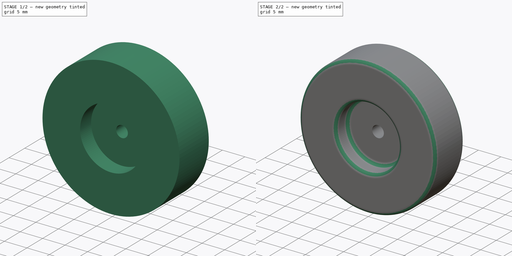
[diagram: build sequence overview — one tinted view per stage of 2, left to right]
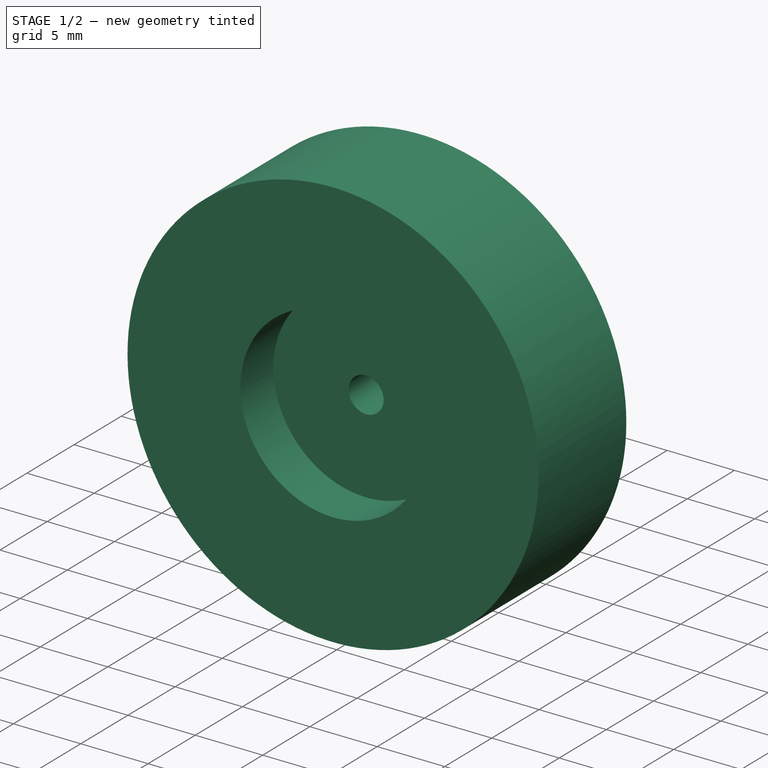
[diagram: stage 1 of 2 — iso view after this stage's code; geometry added in this stage tinted green]
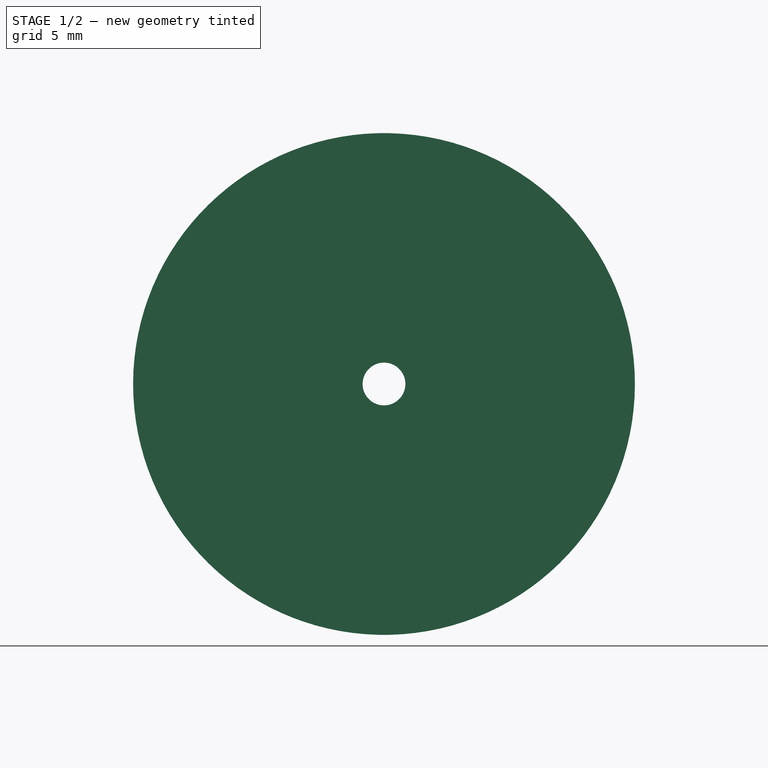
[diagram: stage 1 of 2 — front view after this stage's code; geometry added in this stage tinted green]
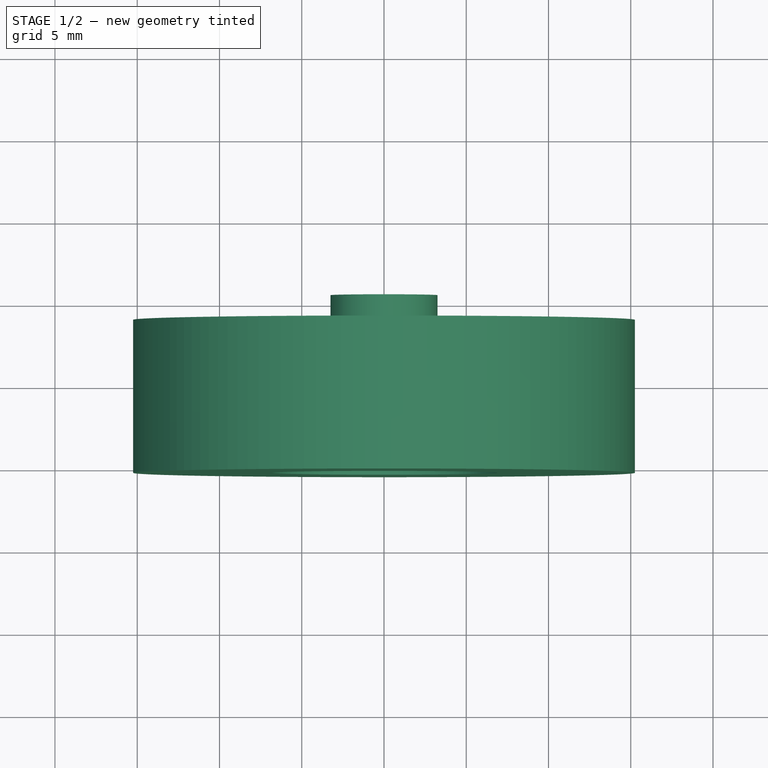
[diagram: stage 1 of 2 — top view after this stage's code; geometry added in this stage tinted green]
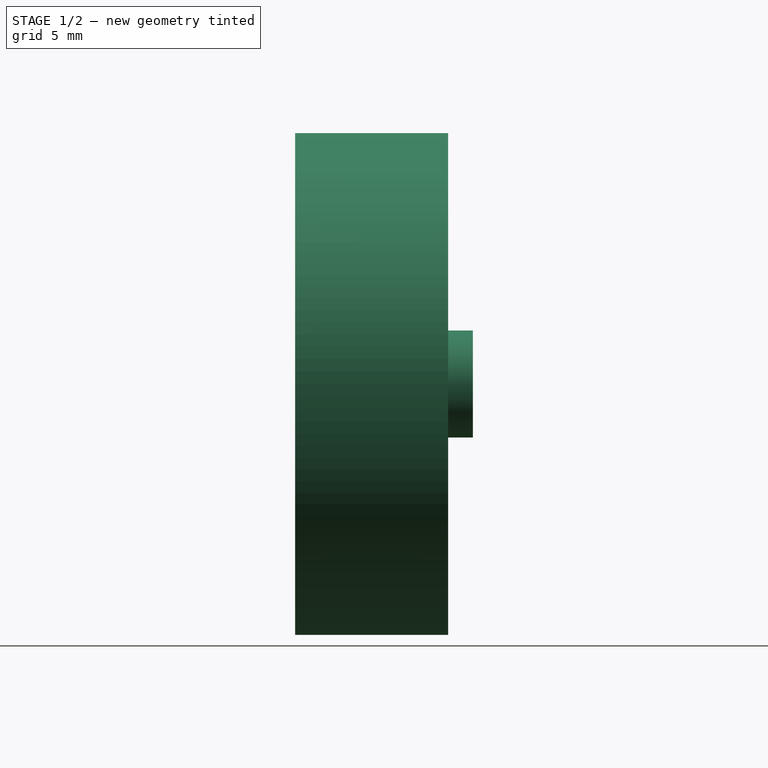
[diagram: stage 1 of 2 — right view after this stage's code; geometry added in this stage tinted green]
FCSTD DOCUMENT  (FreeCAD 1.0R39285 (Git))
Label: StandardWheel
License: All rights reserved
LicenseURL: https://en.wikipedia.org/wiki/All_rights_reserved
objects: Sketcher::SketchObject×2, PartDesign::Fillet×2, App::Link×1, PartDesign::Revolution×1, PartDesign::Pocket×1, PartDesign::Body×1
note: 17 computed .brp shape members not serialized (recipe doc carries the construction recipe); baked Part::Feature solids carry a one-line shape summary decoded from their .brp
EXTERNAL_REF file=../../Dimentions.FCStd obj=dd002

FEATURE [App::Link] Link  label="Wheel"
  AxelHoleDiameter = 2.6
  LinkedObject = -> <external ../../Dimentions.FCStd>#dd002
FEATURE [Sketcher::SketchObject] Sketch
  ArcFitTolerance = 1e-06
  AttachmentSupport = -> [XY_Plane]
  FullyConstrained = true
  MakeInternals = false
  MapMode = 5
  expr: Constraints[33] = <<Wheel>>.SingleThickness
  expr: Constraints[34] = <<Wheel>>.Diameter
  expr: Constraints[35] = <<Wheel>>.StemDiameter
  expr: Constraints[36] = <<Wheel>>.StemPoke
  expr: Constraints[37] = <<Wheel>>.AxelHoleDiameter
  expr: Constraints[38] = <<Wheel>>.LipThickness
  sketch-geometry (15):
    g0: LineSegment [constr] StartX=-1.3 StartY=5.4 StartZ=0 EndX=-1.3 EndY=-5.4 EndZ=0
    g1: LineSegment [constr] StartX=-1.3 StartY=-5.4 StartZ=0 EndX=-15.25 EndY=-5.4 EndZ=0
    g2: LineSegment [constr] StartX=-15.25 StartY=-5.4 StartZ=0 EndX=-15.25 EndY=3.9 EndZ=0
    g3: LineSegment [constr] StartX=-15.25 StartY=3.9 StartZ=0 EndX=-3.25 EndY=3.9 EndZ=0
    g4: LineSegment [constr] StartX=-3.25 StartY=3.9 StartZ=0 EndX=-3.25 EndY=5.4 EndZ=0
    g5: LineSegment [constr] StartX=-3.25 StartY=5.4 StartZ=0 EndX=-1.3 EndY=5.4 EndZ=0
    g6: LineSegment StartX=1.3 StartY=5.4 StartZ=0 EndX=1.3 EndY=-5.4 EndZ=0
    g7: LineSegment StartX=1.3 StartY=-5.4 StartZ=0 EndX=15.25 EndY=-5.4 EndZ=0
    g8: LineSegment StartX=15.25 StartY=-5.4 StartZ=0 EndX=15.25 EndY=3.9 EndZ=0
    g9: LineSegment StartX=15.25 StartY=3.9 StartZ=0 EndX=12.75 EndY=3.9 EndZ=0
    g10: LineSegment StartX=12.75 StartY=3.9 StartZ=0 EndX=12.75 EndY=-1.4 EndZ=0
    g11: LineSegment StartX=12.75 StartY=-1.4 StartZ=0 EndX=3.25 EndY=-1.4 EndZ=0
    g12: LineSegment StartX=3.25 StartY=-1.4 StartZ=0 EndX=3.25 EndY=5.4 EndZ=0
    g13: LineSegment StartX=3.25 StartY=5.4 StartZ=0 EndX=1.3 EndY=5.4 EndZ=0
    g14: LineSegment [constr] StartX=12.75 StartY=-1.4 StartZ=0 EndX=12.75 EndY=-5.4 EndZ=0
  constraints (43):
    c: Vertical(g0)
    c: Coincident(g0,g1)
    c: Horizontal(g1)
    c: Coincident(g1,g2)
    c: Vertical(g2)
    c: Coincident(g2,g3)
    c: Horizontal(g3)
    c: Coincident(g3,g4)
    c: Vertical(g4)
    c: Coincident(g4,g5)
    c: Coincident(g5,g0)
    c: Horizontal(g5)
    c: Coincident(g6,g7)
    c: Horizontal(g7)
    c: Coincident(g7,g8)
    c: Vertical(g8)
    c: Coincident(g8,g9)
    c: Horizontal(g9)
    c: Coincident(g9,g10)
    c: Vertical(g10)
    c: Coincident(g10,g11)
    c: Horizontal(g11)
    c: Coincident(g11,g12)
    c: Vertical(g12)
    c: Coincident(g12,g13)
    c: Coincident(g13,g6)
    c: Symmetric(g0,g6,g-2)
    c: Horizontal(g13)
    c: Equal(g13,g5)
    c: Symmetric(g6,g6,g-1)
    c: Equal(g0,g6)
    c: Equal(g2,g8)
    c: Equal(g1,g7)
    c: DistanceY(g6,g6) = 10.8
    c: DistanceX(g1,g7) = 30.5
    c: Distance(g4,g12) = 6.5
    c: DistanceY(g9,g12) = 1.5
    c: Distance(g0,g6) = 2.6
    c: DistanceX(g10,g7) = 2.5
    c: Coincident(g14,g10)
    c: PointOnObject(g14,g7)
    c: Vertical(g14)
    c: DistanceY(g14,g14) = 4
FEATURE [PartDesign::Revolution] Revolution
  Angle = 360
  Angle2 = 60
  Axis = (0,1,0)
  Base = (0,0,0)
  Profile = -> Sketch
  ReferenceAxis = -> Sketch [V_Axis]
  Refine = true
  Reversed = true
  Suppressed = false
  Type = 0
FEATURE [Sketcher::SketchObject] Sketch001
  ArcFitTolerance = 1e-06
  AttachmentSupport = -> [Revolution]
  FullyConstrained = true
  MakeInternals = false
  MapMode = 5
  Placement = pos=(0,-5.4,0) rot=(1,0,0;1.5708rad)
  expr: Constraints[1] = <<Wheel>>.HubDipDiameter
  sketch-geometry (1):
    g0: Circle CenterX=0 CenterY=0 CenterZ=0 NormalX=0 NormalY=0 NormalZ=1 AngleXU=0 Radius=6.875
  constraints (2):
    c: Coincident(g0,g-1)
    c: Diameter(g0) = 13.75
FEATURE [PartDesign::Pocket] Pocket
  BaseFeature = -> Revolution
  Direction = (0,1,-2e-16)
  Length = 3.5
  Length2 = 5
  Profile = -> Sketch001
  ReferenceAxis = -> Sketch001 [N_Axis]
  Refine = true
  Suppressed = false
  Type = 0
  expr: Length = <<Wheel>>.HubDip
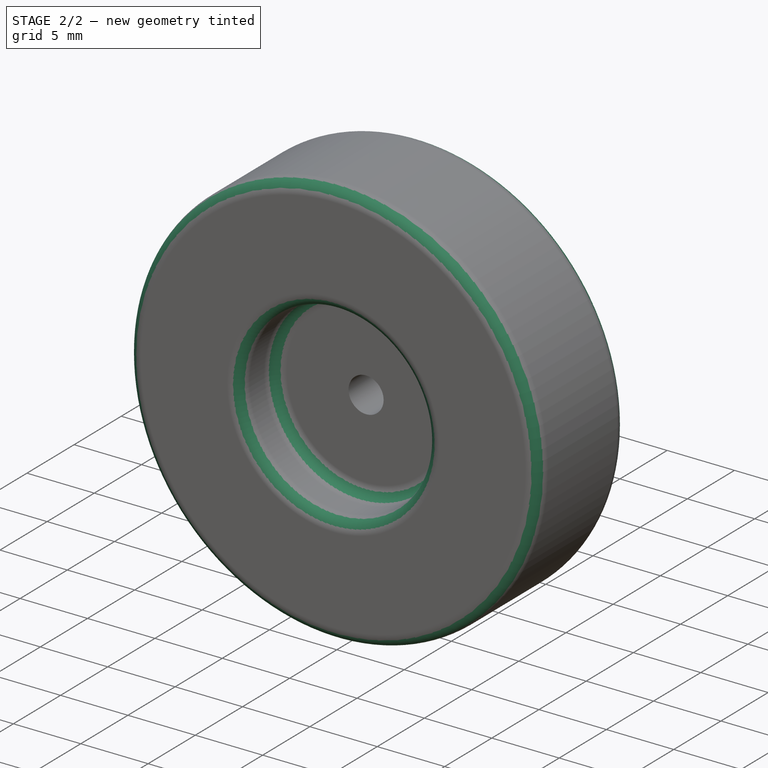
[diagram: stage 2 of 2 — iso view after this stage's code; geometry added in this stage tinted green]
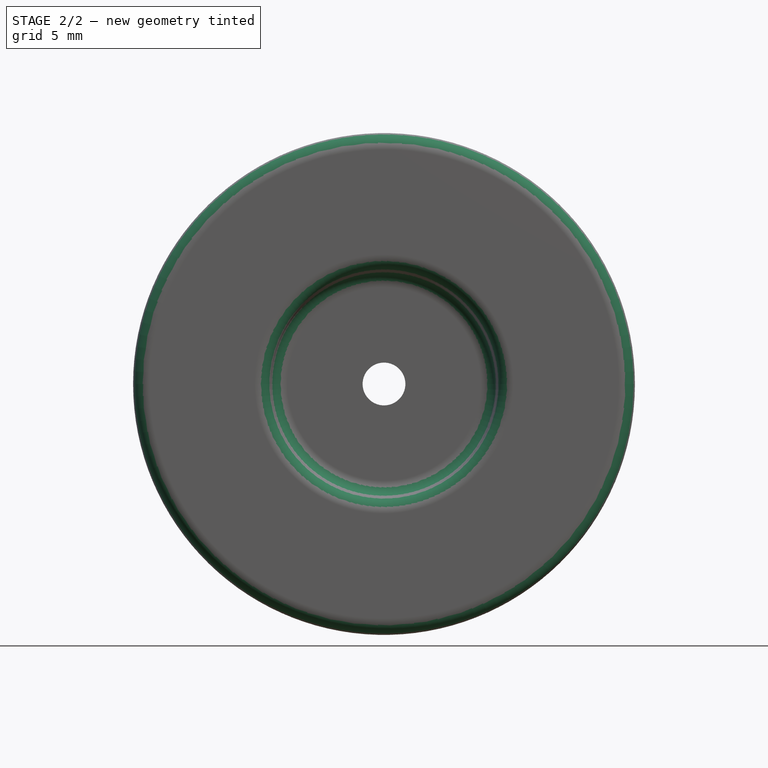
[diagram: stage 2 of 2 — front view after this stage's code; geometry added in this stage tinted green]
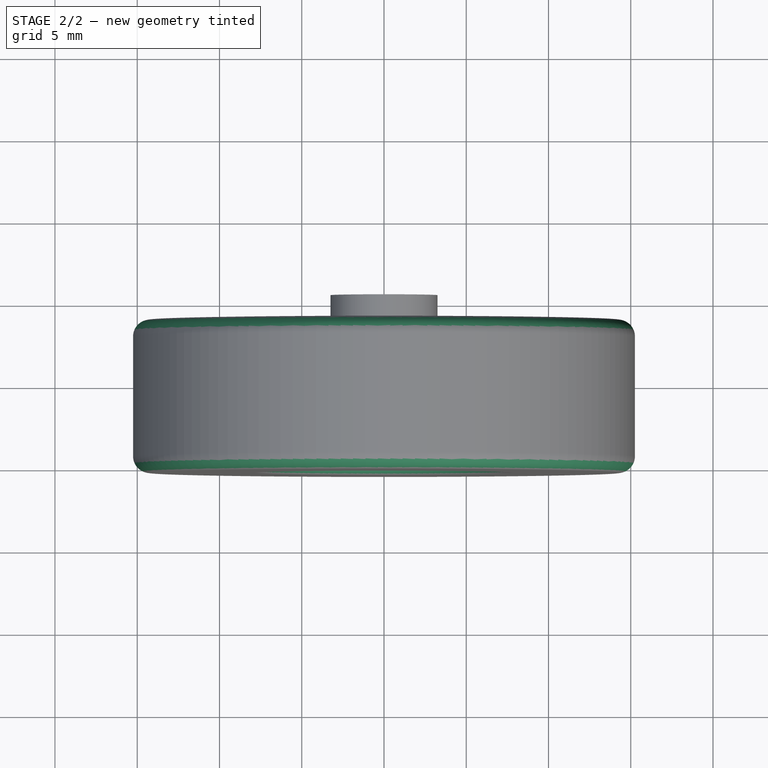
[diagram: stage 2 of 2 — top view after this stage's code; geometry added in this stage tinted green]
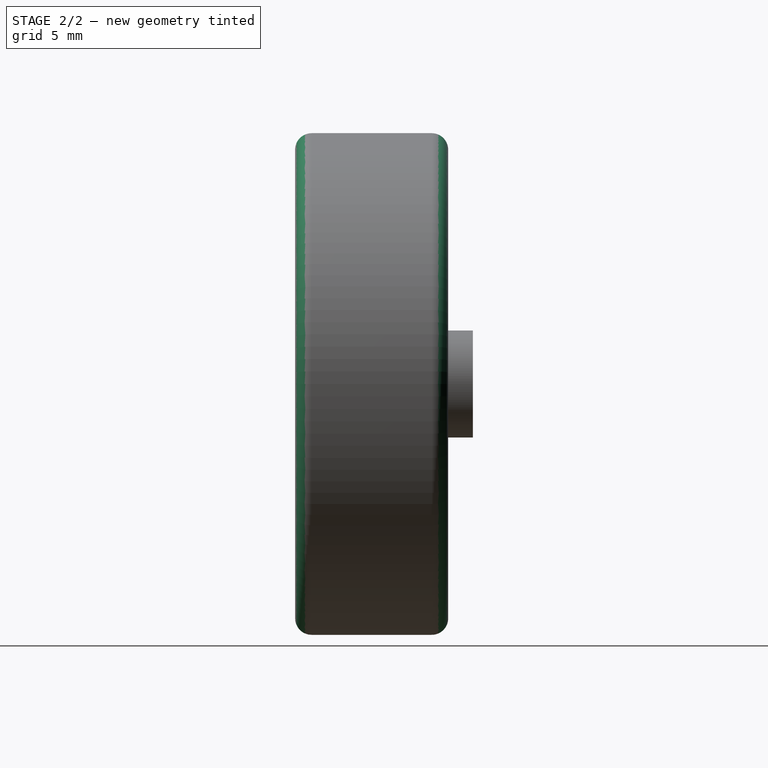
[diagram: stage 2 of 2 — right view after this stage's code; geometry added in this stage tinted green]
FEATURE [PartDesign::Fillet] Fillet
  Base = -> Pocket [Edge7,Edge4,Edge8]
  BaseFeature = -> Pocket
  Radius = 1
  Refine = true
  SupportTransform = false
  Suppressed = false
  UseAllEdges = false
FEATURE [PartDesign::Fillet] Fillet001
  Base = -> Fillet [Edge14,Edge17,Edge20]
  BaseFeature = -> Fillet
  Radius = 1
  Refine = true
  SupportTransform = false
  Suppressed = false
  UseAllEdges = false
FEATURE [PartDesign::Body] Body  label="StdWheel"
  AllowCompound = false
  Group = -> [Sketch,Revolution,Sketch001,Pocket,Fillet,Fillet001]
  Origin = -> Origin
  Tip = -> Fillet001
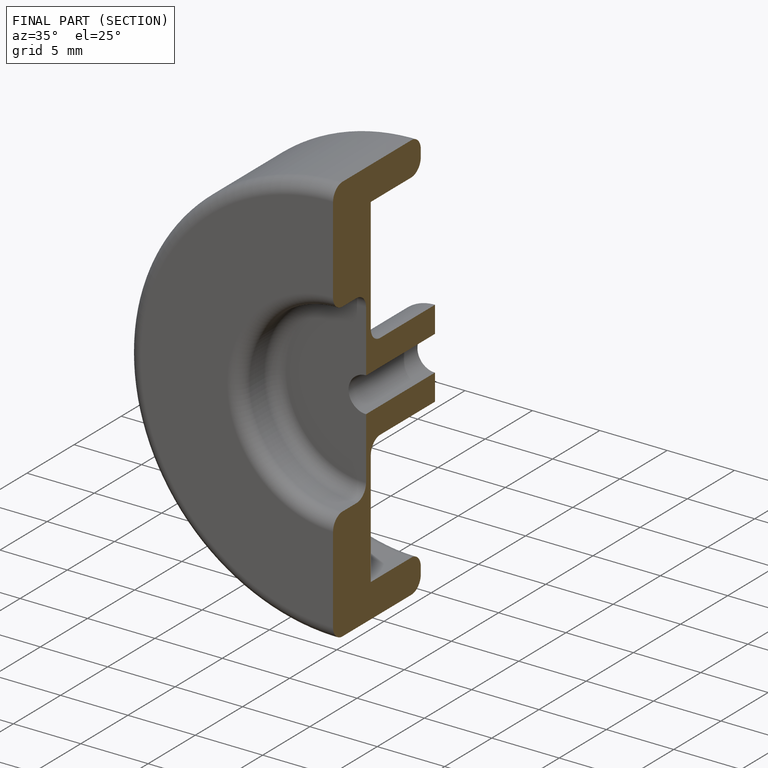
[diagram: finished part — half-section view (interior)]
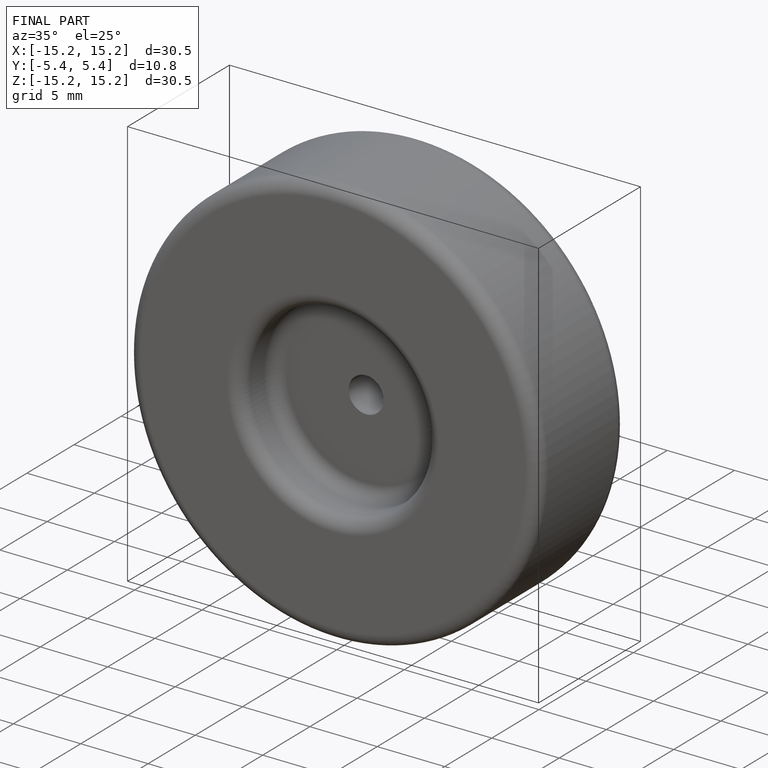
[diagram: finished part — iso view with bounding-box wireframe]
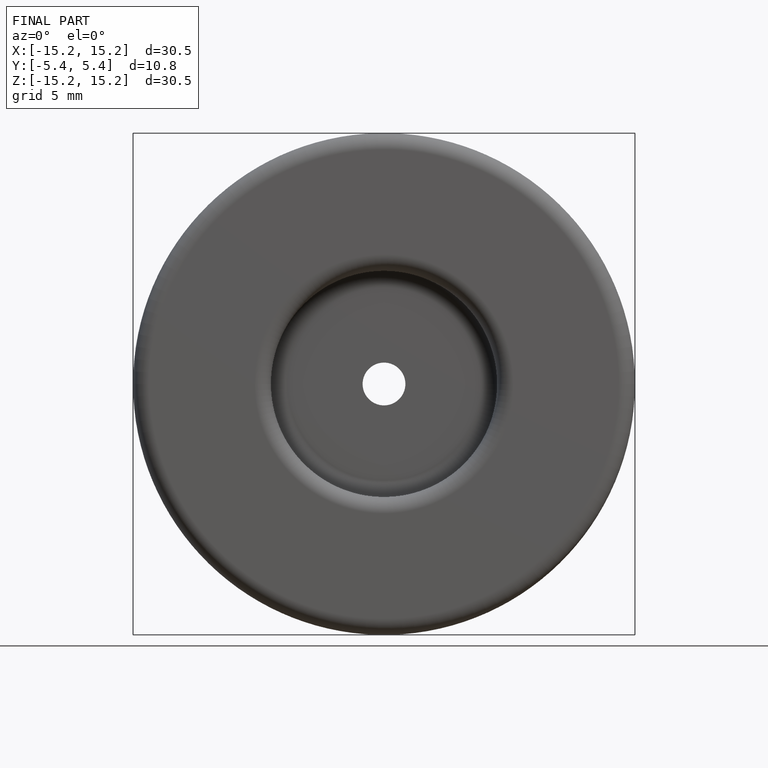
[diagram: finished part — front view with bounding-box wireframe]
